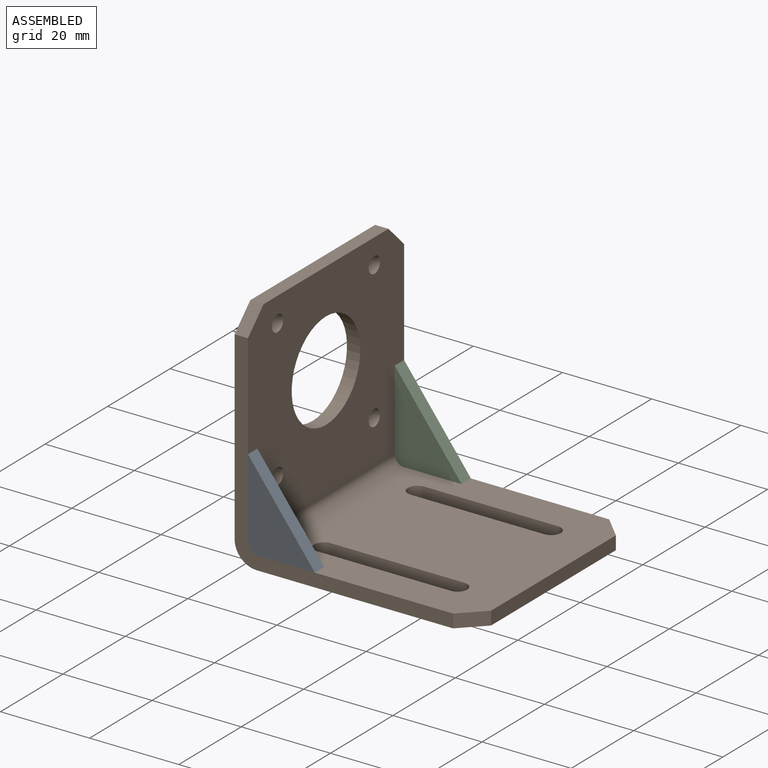
[diagram: assembled view]
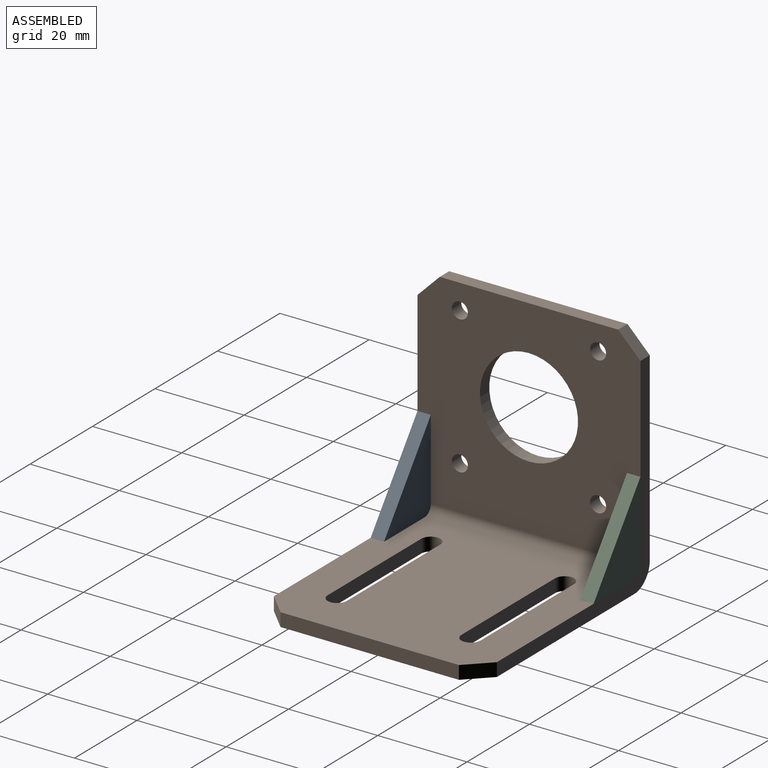
[diagram: assembled view, second angle]
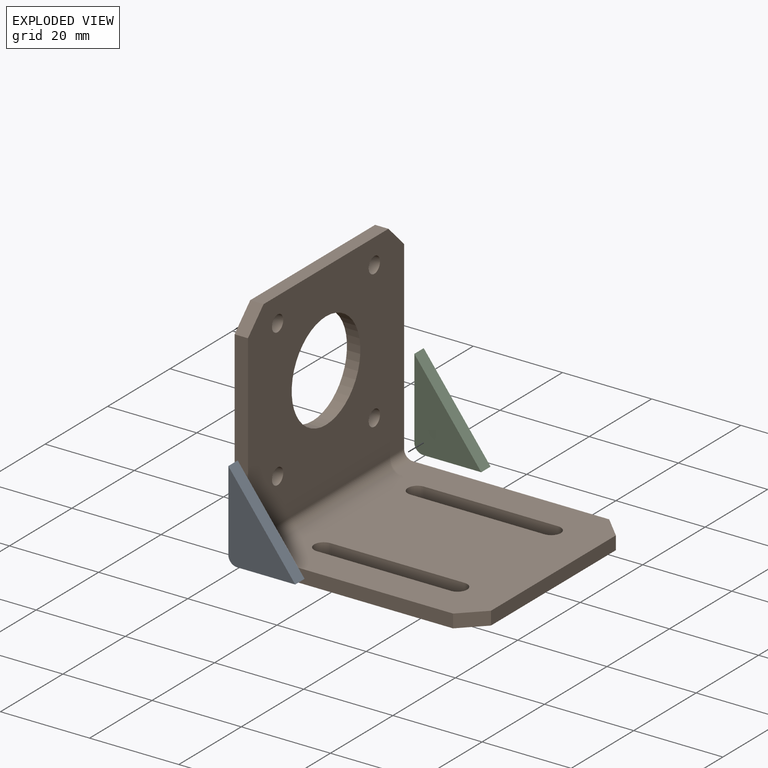
[diagram: exploded view]
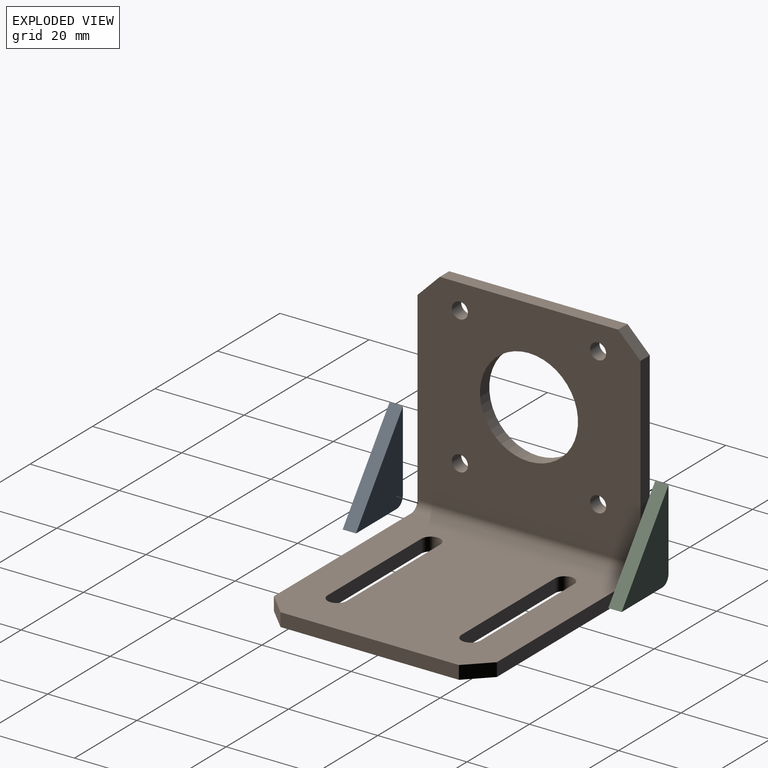
[diagram: exploded view, second angle]
ASSEMBLY  parts=3 mates=2
PART A: 6 faces, bbox 15x3x20 mm
  f0: plane 20x15mm, normal (0.8,0,0.6), area 75mm2, adj f1,f3,f4,f5
  f1: plane 18x3mm, normal (-1,0,0), area 54mm2, adj f0,f2,f4,f5
  f2: cylinder r=2mm len=3mm, axis (0,-1,0), area 9.4mm2, adj f1,f3,f4,f5
  f3: plane 13x3mm, normal (0,0,-1), area 39mm2, adj f0,f2,f4,f5
  f4: plane 20x15mm, normal (0,1,0), area 149.1mm2, adj f0,f1,f2,f3
  f5: plane 20x15mm, normal (0,-1,0), area 149.1mm2, adj f0,f1,f2,f3
PART B: 27 faces, bbox 54x50x51.5 mm
  f0: plane 40x3mm, normal (0,0,1), area 120mm2, adj f1,f7,f11,f12
  f1: plane 50x46.5mm, normal (-1,0,0), area 1879.2mm2, adj f0,f2,f8,f9,f10,f11,f12,f15
  f2: cylinder r=5mm len=50mm, axis (0,1,0), area 392.7mm2, adj f1,f3,f8,f9
  f3: plane 50x49mm, normal (0,0,-1), area 2138mm2, adj f2,f4,f8,f9,f13,f14,f19,f20
  f4: plane 40x3mm, normal (1,0,0), area 120mm2, adj f3,f5,f13,f14
  f5: plane 50x49mm, normal (0,0,1), area 2138mm2, adj f4,f6,f8,f9,f13,f14,f19,f20
  f6: cylinder r=2mm len=50mm, axis (0,1,0), area 157.1mm2, adj f5,f7,f8,f9
  f7: plane 50x46.5mm, normal (1,0,0), area 1879.2mm2, adj f0,f6,f8,f9,f10,f11,f12,f15
  f8: plane 49x46.5mm, normal (0,-1,0), area 273mm2, adj f1,f2,f3,f5,f6,f7,f11,f14
  f9: plane 49x46.5mm, normal (0,1,0), area 273mm2, adj f1,f2,f3,f5,f6,f7,f12,f13
  f10: cylinder r=11mm len=22mm, axis (-1,0,0), area 207.3mm2, adj f1,f7
  f11: plane 5x5mm, normal (0,-0.71,0.71), area 21.2mm2, adj f0,f1,f7,f8
  f12: plane 5x5mm, normal (0,0.71,0.71), area 21.2mm2, adj f0,f1,f7,f9
  f13: plane 5x5mm, normal (0.71,0.71,0), area 21.2mm2, adj f3,f4,f5,f9
  f14: plane 5x5mm, normal (0.71,-0.71,0), area 21.2mm2, adj f3,f4,f5,f8
  f15: cylinder r=1.8mm len=3.6mm, axis (-1,0,0), area 33.9mm2, adj f1,f7
  f16: cylinder r=1.8mm len=3.6mm, axis (-1,0,0), area 33.9mm2, adj f1,f7
  f17: cylinder r=1.8mm len=3.6mm, axis (-1,0,0), area 33.9mm2, adj f1,f7
  f18: cylinder r=1.8mm len=3.6mm, axis (-1,0,0), area 33.9mm2, adj f1,f7
  f19: plane 30x3mm, normal (0,-1,0), area 90mm2, adj f3,f5,f20,f22
  f20: cylinder r=2.15mm len=4.3mm, axis (0,0,1), area 20.3mm2, adj f3,f5,f19,f21
  f21: plane 30x3mm, normal (0,1,0), area 90mm2, adj f3,f5,f20,f22
  f22: cylinder r=2.15mm len=4.3mm, axis (0,0,1), area 20.3mm2, adj f3,f5,f19,f21
  f23: plane 30x3mm, normal (0,-1,0), area 90mm2, adj f3,f5,f24,f26
  f24: cylinder r=2.15mm len=4.3mm, axis (0,0,1), area 20.3mm2, adj f3,f5,f23,f25
  f25: plane 30x3mm, normal (0,1,0), area 90mm2, adj f3,f5,f24,f26
  f26: cylinder r=2.15mm len=4.3mm, axis (0,0,1), area 20.3mm2, adj f3,f5,f23,f25
PART C: same geometry as A
PLACE A at identity
PLACE B at identity fixed
PLACE C t=(0,47,0)mm
MATE fastened A.f2 <-> B.f2  axis (0,-1,0) through (5,-25,-25.4)mm
MATE fastened C.f2 <-> B.f2  axis (0,1,0) through (5,25,-25.4)mm
